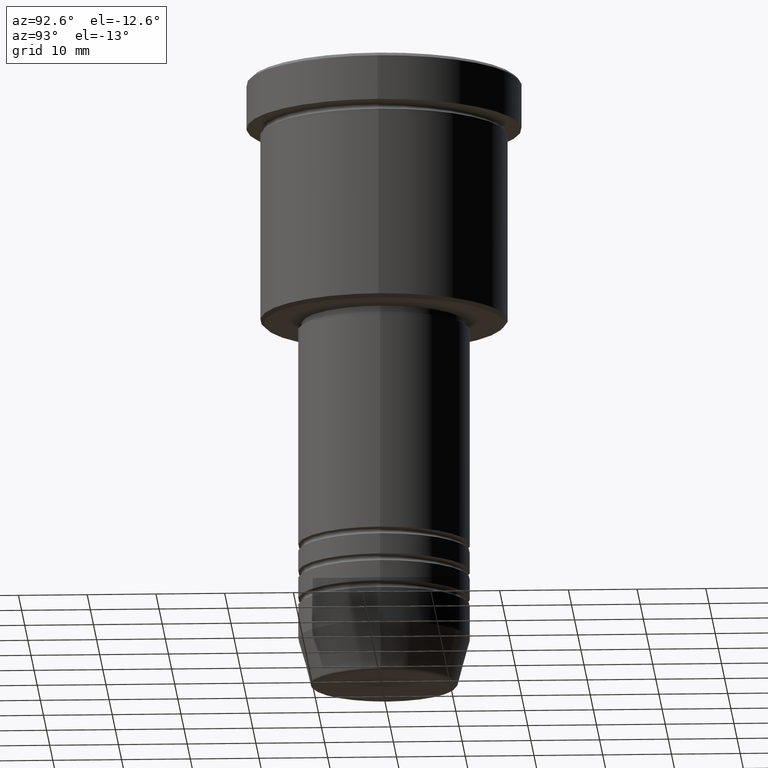
[diagram: clean part render]
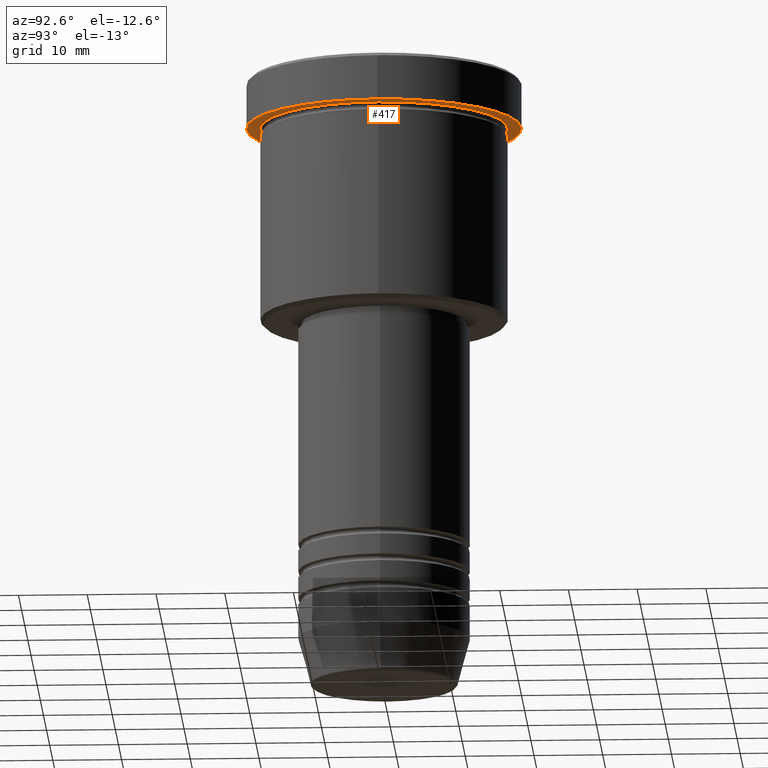
[diagram: same view with one face highlighted and labeled with its STEP entity id]
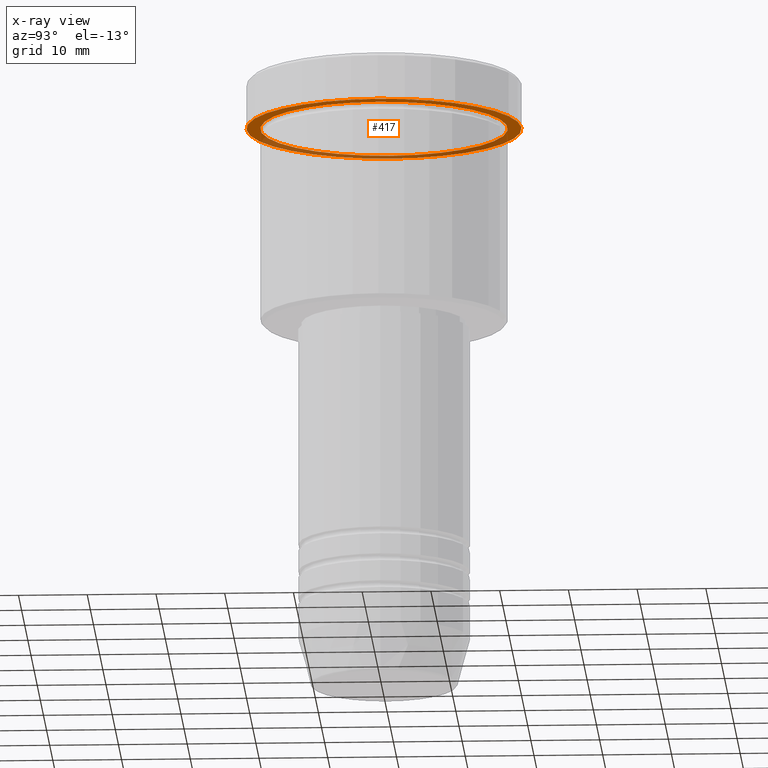
[diagram: x-ray of the same camera — body ghosted, the highlighted face saturated]
A machine part, auxiliary view. The second image highlights one B-rep face of the part: STEP entity #417.
The next image is the same camera in x-ray: the body ghosted, the highlighted face saturated — about 38% of this face is hidden behind the body in this view.
In plain terms, the highlighted planar face has unit normal (0, 0, -1).
Its self-contained STEP definition (entity closure, byte-faithful):
#16 = DIRECTION ( 'NONE',  ( -0.000000000000000000, -0.000000000000000000, 1.000000000000000000 ) ) ;
#39 = DIRECTION ( 'NONE',  ( 1.000000000000000000, 0.000000000000000000, 0.000000000000000000 ) ) ;
#42 = EDGE_CURVE ( 'NONE', #484, #167, #1092, .T. ) ;
#70 = AXIS2_PLACEMENT_3D ( 'NONE', #325, #572, #865 ) ;
#77 = CARTESIAN_POINT ( 'NONE',  ( 0.000000000000000000, 0.000000000000000000, -6.999999999999995559 ) ) ;
#113 = EDGE_CURVE ( 'NONE', #660, #884, #242, .T. ) ;
#132 = AXIS2_PLACEMENT_3D ( 'NONE', #77, #260, #297 ) ;
#141 = CARTESIAN_POINT ( 'NONE',  ( -18.00000000000000000, 0.000000000000000000, -6.999999999999995559 ) ) ;
#153 = AXIS2_PLACEMENT_3D ( 'NONE', #931, #850, #39 ) ;
#167 = VERTEX_POINT ( 'NONE', #141 ) ;
#222 = FACE_BOUND ( 'NONE', #694, .T. ) ;
#242 = CIRCLE ( 'NONE', #153, 20.00000000000000000 ) ;
#247 = ORIENTED_EDGE ( 'NONE', *, *, #113, .F. ) ;
#249 = EDGE_LOOP ( 'NONE', ( #599, #247 ) ) ;
#260 = DIRECTION ( 'NONE',  ( -0.000000000000000000, -0.000000000000000000, 1.000000000000000000 ) ) ;
#297 = DIRECTION ( 'NONE',  ( -1.000000000000000000, 0.000000000000000000, 0.000000000000000000 ) ) ;
#325 = CARTESIAN_POINT ( 'NONE',  ( 0.000000000000000000, 20.00000000000000000, -6.999999999999995559 ) ) ;
#365 = ORIENTED_EDGE ( 'NONE', *, *, #439, .T. ) ;
#417 = ADVANCED_FACE ( 'NONE', ( #222, #1147 ), #761, .T. ) ;
#439 = EDGE_CURVE ( 'NONE', #167, #484, #551, .T. ) ;
#484 = VERTEX_POINT ( 'NONE', #963 ) ;
#551 = CIRCLE ( 'NONE', #132, 18.00000000000000000 ) ;
#569 = AXIS2_PLACEMENT_3D ( 'NONE', #801, #16, #1112 ) ;
#572 = DIRECTION ( 'NONE',  ( 0.000000000000000000, 0.000000000000000000, -1.000000000000000000 ) ) ;
#577 = DIRECTION ( 'NONE',  ( -0.000000000000000000, -0.000000000000000000, 1.000000000000000000 ) ) ;
#599 = ORIENTED_EDGE ( 'NONE', *, *, #617, .F. ) ;
#617 = EDGE_CURVE ( 'NONE', #884, #660, #667, .T. ) ;
#660 = VERTEX_POINT ( 'NONE', #955 ) ;
#667 = CIRCLE ( 'NONE', #724, 20.00000000000000000 ) ;
#694 = EDGE_LOOP ( 'NONE', ( #365, #1067 ) ) ;
#724 = AXIS2_PLACEMENT_3D ( 'NONE', #1131, #577, #962 ) ;
#761 = PLANE ( 'NONE',  #70 ) ;
#801 = CARTESIAN_POINT ( 'NONE',  ( 0.000000000000000000, 0.000000000000000000, -6.999999999999995559 ) ) ;
#850 = DIRECTION ( 'NONE',  ( -0.000000000000000000, -0.000000000000000000, 1.000000000000000000 ) ) ;
#865 = DIRECTION ( 'NONE',  ( -1.000000000000000000, 0.000000000000000000, -0.000000000000000000 ) ) ;
#884 = VERTEX_POINT ( 'NONE', #1107 ) ;
#931 = CARTESIAN_POINT ( 'NONE',  ( 0.000000000000000000, 0.000000000000000000, -6.999999999999995559 ) ) ;
#955 = CARTESIAN_POINT ( 'NONE',  ( -20.00000000000000000, 2.449293598294706513E-15, -6.999999999999995559 ) ) ;
#962 = DIRECTION ( 'NONE',  ( 1.000000000000000000, 0.000000000000000000, 0.000000000000000000 ) ) ;
#963 = CARTESIAN_POINT ( 'NONE',  ( 18.00000000000000000, 2.204364238465235428E-15, -6.999999999999995559 ) ) ;
#1067 = ORIENTED_EDGE ( 'NONE', *, *, #42, .T. ) ;
#1092 = CIRCLE ( 'NONE', #569, 18.00000000000000000 ) ;
#1107 = CARTESIAN_POINT ( 'NONE',  ( 20.00000000000000000, 0.000000000000000000, -6.999999999999995559 ) ) ;
#1112 = DIRECTION ( 'NONE',  ( -1.000000000000000000, 0.000000000000000000, 0.000000000000000000 ) ) ;
#1131 = CARTESIAN_POINT ( 'NONE',  ( 0.000000000000000000, 0.000000000000000000, -6.999999999999995559 ) ) ;
#1147 = FACE_OUTER_BOUND ( 'NONE', #249, .T. ) ;